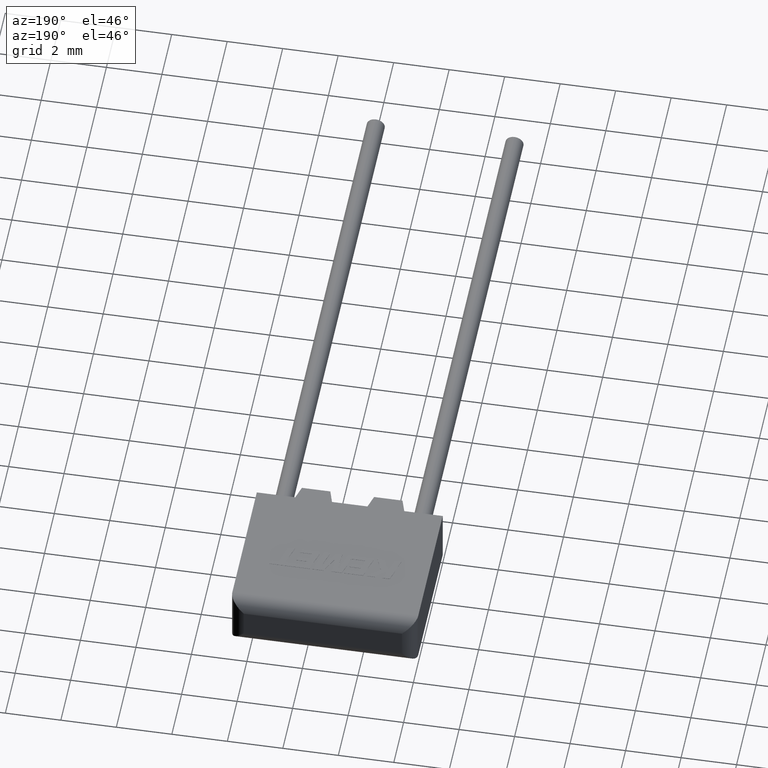
[diagram: clean part render]
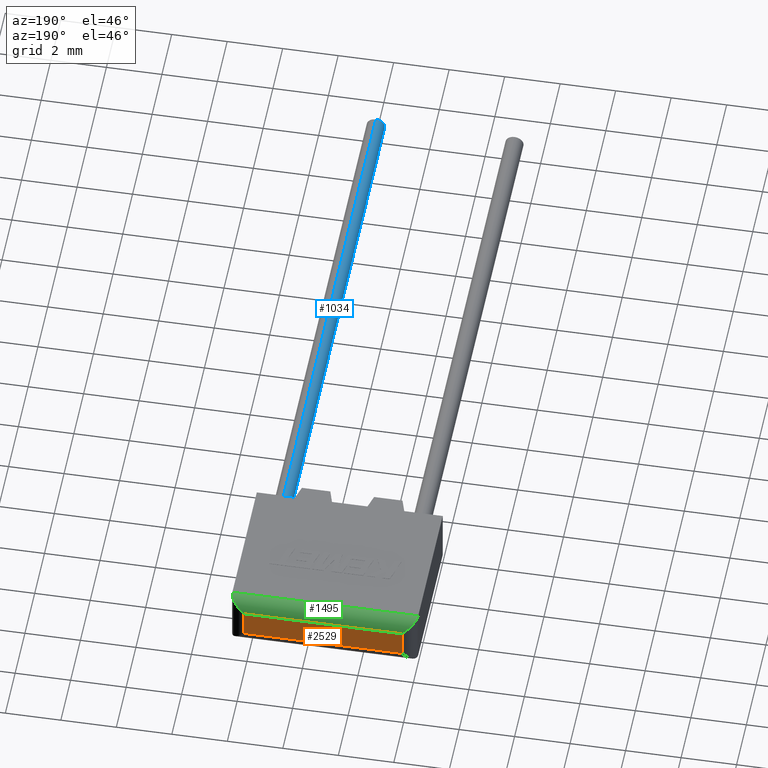
[diagram: same view with three faces highlighted in distinct colors, each labeled with its STEP entity id]
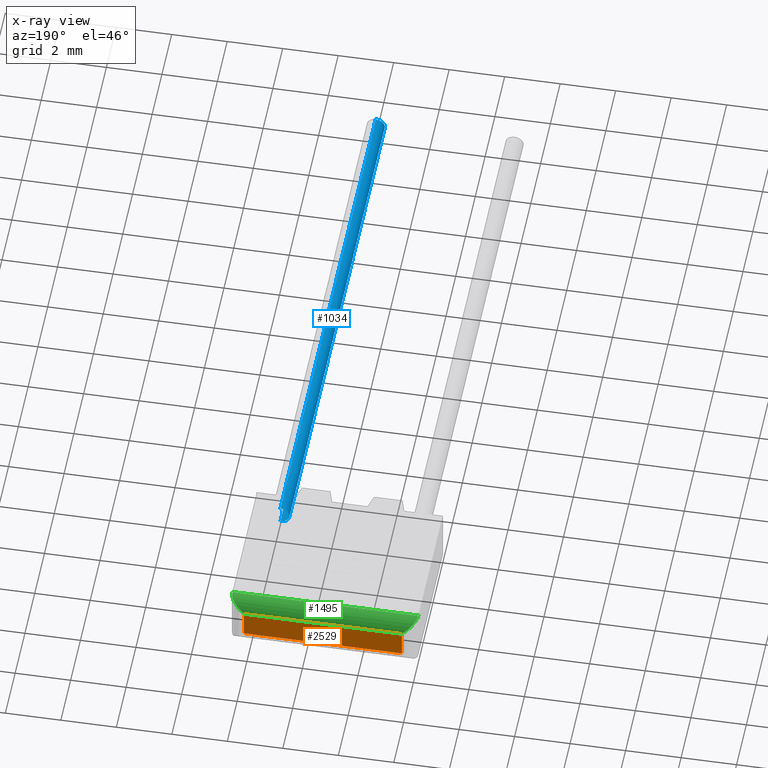
[diagram: x-ray of the same camera — body ghosted, the three highlighted faces saturated]
A machine part, auxiliary view with three faces highlighted in distinct colors.
The next image is the same camera in x-ray (body ghosted, the three faces saturated) — at least one of them is partly hidden behind the body in this view.
Their STEP definitions:

[orange] entity #2529 — the highlighted planar face has unit normal (0, -1, 0).
#49 = DIRECTION ( 'NONE',  ( 1.000000000000000000, -0.0000000000000000000, -0.0000000000000000000 ) ) ;
#65 = FACE_OUTER_BOUND ( 'NONE', #1233, .T. ) ;
#75 = CARTESIAN_POINT ( 'NONE',  ( 0.5000000000000000000, 5.500000000000000000, 0.5000000000000000000 ) ) ;
#97 = CARTESIAN_POINT ( 'NONE',  ( 0.0000000000000000000, 5.500000000000000000, 0.5000000000000000000 ) ) ;
#414 = DIRECTION ( 'NONE',  ( -0.0000000000000000000, -0.0000000000000000000, 1.000000000000000000 ) ) ;
#482 = AXIS2_PLACEMENT_3D ( 'NONE', #2694, #984, #1253 ) ;
#503 = EDGE_CURVE ( 'NONE', #1848, #1045, #1917, .T. ) ;
#779 = LINE ( 'NONE', #940, #2857 ) ;
#939 = CARTESIAN_POINT ( 'NONE',  ( 0.5000000000000000000, 5.500000000000000000, 2.000000000000000000 ) ) ;
#940 = CARTESIAN_POINT ( 'NONE',  ( 6.200000000000001100, 5.500000000000000000, 2.000000000000000000 ) ) ;
#984 = DIRECTION ( 'NONE',  ( 0.0000000000000000000, -1.000000000000000000, 0.0000000000000000000 ) ) ;
#1045 = VERTEX_POINT ( 'NONE', #2597 ) ;
#1048 = EDGE_CURVE ( 'NONE', #1633, #1848, #2551, .T. ) ;
#1075 = ORIENTED_EDGE ( 'NONE', *, *, #1976, .T. ) ;
#1105 = VERTEX_POINT ( 'NONE', #2841 ) ;
#1233 = EDGE_LOOP ( 'NONE', ( #2333, #1075, #2472, #2643 ) ) ;
#1253 = DIRECTION ( 'NONE',  ( 0.0000000000000000000, -0.0000000000000000000, -1.000000000000000000 ) ) ;
#1633 = VERTEX_POINT ( 'NONE', #2641 ) ;
#1835 = VECTOR ( 'NONE', #414, 1000.000000000000000 ) ;
#1848 = VERTEX_POINT ( 'NONE', #75 ) ;
#1855 = VECTOR ( 'NONE', #49, 1000.000000000000000 ) ;
#1917 = LINE ( 'NONE', #939, #1835 ) ;
#1976 = EDGE_CURVE ( 'NONE', #1105, #1633, #779, .T. ) ;
#1981 = PLANE ( 'NONE',  #482 ) ;
#2332 = CARTESIAN_POINT ( 'NONE',  ( 0.0000000000000000000, 5.500000000000000000, 1.500000000000000000 ) ) ;
#2333 = ORIENTED_EDGE ( 'NONE', *, *, #2884, .T. ) ;
#2367 = VECTOR ( 'NONE', #2380, 1000.000000000000000 ) ;
#2380 = DIRECTION ( 'NONE',  ( -1.000000000000000000, 0.0000000000000000000, 0.0000000000000000000 ) ) ;
#2472 = ORIENTED_EDGE ( 'NONE', *, *, #1048, .T. ) ;
#2502 = LINE ( 'NONE', #2332, #1855 ) ;
#2529 = ADVANCED_FACE ( 'NONE', ( #65 ), #1981, .F. ) ;
#2551 = LINE ( 'NONE', #97, #2367 ) ;
#2597 = CARTESIAN_POINT ( 'NONE',  ( 0.5000000000000000000, 5.500000000000000000, 1.500000000000000000 ) ) ;
#2641 = CARTESIAN_POINT ( 'NONE',  ( 6.200000000000001100, 5.500000000000000000, 0.5000000000000000000 ) ) ;
#2643 = ORIENTED_EDGE ( 'NONE', *, *, #503, .T. ) ;
#2694 = CARTESIAN_POINT ( 'NONE',  ( 0.0000000000000000000, 5.500000000000000000, 2.000000000000000000 ) ) ;
#2841 = CARTESIAN_POINT ( 'NONE',  ( 6.200000000000001100, 5.500000000000000000, 1.500000000000000000 ) ) ;
#2857 = VECTOR ( 'NONE', #2954, 1000.000000000000000 ) ;
#2884 = EDGE_CURVE ( 'NONE', #1045, #1105, #2502, .T. ) ;
#2954 = DIRECTION ( 'NONE',  ( 0.0000000000000000000, 0.0000000000000000000, -1.000000000000000000 ) ) ;

[blue] entity #1034 — the highlighted cylindrical surface (edge-blend (fillet) strip) has radius 0.325 mm, axis along (-0, 1, -0).
#25 = VECTOR ( 'NONE', #1696, 1000.000000000000000 ) ;
#50 = AXIS2_PLACEMENT_3D ( 'NONE', #3194, #2213, #2176 ) ;
#74 = AXIS2_PLACEMENT_3D ( 'NONE', #2608, #882, #1909 ) ;
#308 = CIRCLE ( 'NONE', #50, 0.3250000000000000100 ) ;
#455 = VERTEX_POINT ( 'NONE', #2188 ) ;
#539 = CARTESIAN_POINT ( 'NONE',  ( 5.850000000000000500, 0.0000000000000000000, 0.6750000000000002700 ) ) ;
#581 = CARTESIAN_POINT ( 'NONE',  ( 5.850000000000000500, 0.0000000000000000000, 1.325000000000000200 ) ) ;
#672 = LINE ( 'NONE', #3024, #1114 ) ;
#873 = DIRECTION ( 'NONE',  ( 0.0000000000000000000, 0.0000000000000000000, -1.000000000000000000 ) ) ;
#882 = DIRECTION ( 'NONE',  ( -0.0000000000000000000, 1.000000000000000000, -0.0000000000000000000 ) ) ;
#989 = LINE ( 'NONE', #2921, #25 ) ;
#1034 = ADVANCED_FACE ( 'NONE', ( #1125 ), #1448, .T. ) ;
#1081 = ORIENTED_EDGE ( 'NONE', *, *, #1995, .F. ) ;
#1114 = VECTOR ( 'NONE', #2294, 1000.000000000000000 ) ;
#1125 = FACE_OUTER_BOUND ( 'NONE', #3121, .T. ) ;
#1403 = VERTEX_POINT ( 'NONE', #2116 ) ;
#1448 = CYLINDRICAL_SURFACE ( 'NONE', #74, 0.3250000000000000100 ) ;
#1587 = ORIENTED_EDGE ( 'NONE', *, *, #1673, .F. ) ;
#1628 = EDGE_CURVE ( 'NONE', #455, #1403, #1717, .T. ) ;
#1673 = EDGE_CURVE ( 'NONE', #455, #3039, #672, .T. ) ;
#1696 = DIRECTION ( 'NONE',  ( -0.0000000000000000000, 1.000000000000000000, -0.0000000000000000000 ) ) ;
#1717 = CIRCLE ( 'NONE', #1923, 0.3250000000000000100 ) ;
#1901 = DIRECTION ( 'NONE',  ( -0.0000000000000000000, 1.000000000000000000, -0.0000000000000000000 ) ) ;
#1909 = DIRECTION ( 'NONE',  ( 0.0000000000000000000, 0.0000000000000000000, 1.000000000000000000 ) ) ;
#1923 = AXIS2_PLACEMENT_3D ( 'NONE', #2124, #1901, #873 ) ;
#1995 = EDGE_CURVE ( 'NONE', #3039, #2373, #308, .T. ) ;
#2116 = CARTESIAN_POINT ( 'NONE',  ( 5.850000000000000500, -19.50000000000000000, 1.325000000000000200 ) ) ;
#2124 = CARTESIAN_POINT ( 'NONE',  ( 5.850000000000000500, -19.50000000000000000, 1.000000000000000200 ) ) ;
#2128 = EDGE_CURVE ( 'NONE', #1403, #2373, #989, .T. ) ;
#2176 = DIRECTION ( 'NONE',  ( 0.0000000000000000000, 0.0000000000000000000, -1.000000000000000000 ) ) ;
#2188 = CARTESIAN_POINT ( 'NONE',  ( 5.850000000000000500, -19.50000000000000000, 0.6750000000000002700 ) ) ;
#2213 = DIRECTION ( 'NONE',  ( -0.0000000000000000000, 1.000000000000000000, -0.0000000000000000000 ) ) ;
#2294 = DIRECTION ( 'NONE',  ( -0.0000000000000000000, 1.000000000000000000, -0.0000000000000000000 ) ) ;
#2348 = ORIENTED_EDGE ( 'NONE', *, *, #2128, .T. ) ;
#2373 = VERTEX_POINT ( 'NONE', #581 ) ;
#2608 = CARTESIAN_POINT ( 'NONE',  ( 5.850000000000000500, -19.50000000000000000, 1.000000000000000200 ) ) ;
#2921 = CARTESIAN_POINT ( 'NONE',  ( 5.850000000000000500, -19.50000000000000000, 1.325000000000000200 ) ) ;
#3024 = CARTESIAN_POINT ( 'NONE',  ( 5.850000000000000500, -19.50000000000000000, 0.6750000000000002700 ) ) ;
#3039 = VERTEX_POINT ( 'NONE', #539 ) ;
#3121 = EDGE_LOOP ( 'NONE', ( #1587, #3144, #2348, #1081 ) ) ;
#3144 = ORIENTED_EDGE ( 'NONE', *, *, #1628, .T. ) ;
#3194 = CARTESIAN_POINT ( 'NONE',  ( 5.850000000000000500, 0.0000000000000000000, 1.000000000000000200 ) ) ;

[green] entity #1495 — the highlighted cylindrical surface (edge-blend (fillet) strip) has radius 0.5 mm, axis along (-1, 0, 0).
#49 = DIRECTION ( 'NONE',  ( 1.000000000000000000, -0.0000000000000000000, -0.0000000000000000000 ) ) ;
#171 = CARTESIAN_POINT ( 'NONE',  ( 0.2071067811865475200, 5.499999999999998200, 1.792893218813452300 ) ) ;
#200 = CARTESIAN_POINT ( 'NONE',  ( 6.492893218813453200, 5.499999999999999100, 1.792893218813452500 ) ) ;
#232 = FACE_OUTER_BOUND ( 'NONE', #1622, .T. ) ;
#250 = CARTESIAN_POINT ( 'NONE',  ( 0.0000000000000000000, 4.999999999999999100, 2.000000000000000000 ) ) ;
#256 = DIRECTION ( 'NONE',  ( -1.000000000000000000, 0.0000000000000000000, 0.0000000000000000000 ) ) ;
#828 = ORIENTED_EDGE ( 'NONE', *, *, #2884, .F. ) ;
#925 = CARTESIAN_POINT ( 'NONE',  ( 6.700000000000000200, 4.999999999999999100, 2.000000000000000000 ) ) ;
#1045 = VERTEX_POINT ( 'NONE', #2597 ) ;
#1102 = ORIENTED_EDGE ( 'NONE', *, *, #2565, .F. ) ;
#1105 = VERTEX_POINT ( 'NONE', #2841 ) ;
#1390 = VERTEX_POINT ( 'NONE', #1837 ) ;
#1402 = CYLINDRICAL_SURFACE ( 'NONE', #3145, 0.5000000000000000000 ) ;
#1464 = EDGE_CURVE ( 'NONE', #1045, #1487, #2705, .T. ) ;
#1480 = CARTESIAN_POINT ( 'NONE',  ( 0.0000000000000000000, 4.999999999999999100, 2.000000000000000000 ) ) ;
#1487 = VERTEX_POINT ( 'NONE', #250 ) ;
#1495 = ADVANCED_FACE ( 'NONE', ( #232 ), #1402, .T. ) ;
#1499 = DIRECTION ( 'NONE',  ( -1.000000000000000000, 0.0000000000000000000, 0.0000000000000000000 ) ) ;
#1501 = DIRECTION ( 'NONE',  ( 0.0000000000000000000, 0.0000000000000000000, 1.000000000000000000 ) ) ;
#1622 = EDGE_LOOP ( 'NONE', ( #2752, #1102, #2816, #828 ) ) ;
#1686 = CARTESIAN_POINT ( 'NONE',  ( 6.700000000000000200, 5.292893218813451200, 2.000000000000000000 ) ) ;
#1723 = CARTESIAN_POINT ( 'NONE',  ( 6.200000000000001100, 5.500000000000000000, 1.500000000000000000 ) ) ;
#1837 = CARTESIAN_POINT ( 'NONE',  ( 6.700000000000000200, 4.999999999999999100, 2.000000000000000000 ) ) ;
#1855 = VECTOR ( 'NONE', #49, 1000.000000000000000 ) ;
#1990 = EDGE_CURVE ( 'NONE', #1105, #1390, #2498, .T. ) ;
#2138 = CARTESIAN_POINT ( 'NONE',  ( 0.5000000000000000000, 5.500000000000000000, 1.500000000000000000 ) ) ;
#2332 = CARTESIAN_POINT ( 'NONE',  ( 0.0000000000000000000, 5.500000000000000000, 1.500000000000000000 ) ) ;
#2400 = CARTESIAN_POINT ( 'NONE',  ( 1.442892915397364600E-016, 5.292893218813451200, 1.999999999999999600 ) ) ;
#2498 =( BOUNDED_CURVE ( )  B_SPLINE_CURVE ( 3, ( #1723, #200, #1686, #925 ),
 .UNSPECIFIED., .F., .F. ) 
 B_SPLINE_CURVE_WITH_KNOTS ( ( 4, 4 ),
 ( 1.570796326794896600, 3.141592653589793100 ),
 .UNSPECIFIED. ) 
 CURVE ( )  GEOMETRIC_REPRESENTATION_ITEM ( )  RATIONAL_B_SPLINE_CURVE ( ( 1.000000000000000000, 0.8047378541243649400, 0.8047378541243649400, 1.000000000000000000 ) ) 
 REPRESENTATION_ITEM ( '' )  );
#2502 = LINE ( 'NONE', #2332, #1855 ) ;
#2535 = VECTOR ( 'NONE', #1499, 1000.000000000000000 ) ;
#2565 = EDGE_CURVE ( 'NONE', #1390, #1487, #2970, .T. ) ;
#2597 = CARTESIAN_POINT ( 'NONE',  ( 0.5000000000000000000, 5.500000000000000000, 1.500000000000000000 ) ) ;
#2644 = CARTESIAN_POINT ( 'NONE',  ( 0.0000000000000000000, 4.999999999999999100, 2.000000000000000000 ) ) ;
#2705 =( BOUNDED_CURVE ( )  B_SPLINE_CURVE ( 3, ( #2138, #171, #2400, #2644 ),
 .UNSPECIFIED., .F., .F. ) 
 B_SPLINE_CURVE_WITH_KNOTS ( ( 4, 4 ),
 ( 1.570796326794896800, 3.141592653589793100 ),
 .UNSPECIFIED. ) 
 CURVE ( )  GEOMETRIC_REPRESENTATION_ITEM ( )  RATIONAL_B_SPLINE_CURVE ( ( 1.000000000000000000, 0.8047378541243650500, 0.8047378541243650500, 1.000000000000000000 ) ) 
 REPRESENTATION_ITEM ( '' )  );
#2752 = ORIENTED_EDGE ( 'NONE', *, *, #1464, .T. ) ;
#2816 = ORIENTED_EDGE ( 'NONE', *, *, #1990, .F. ) ;
#2841 = CARTESIAN_POINT ( 'NONE',  ( 6.200000000000001100, 5.500000000000000000, 1.500000000000000000 ) ) ;
#2884 = EDGE_CURVE ( 'NONE', #1045, #1105, #2502, .T. ) ;
#2970 = LINE ( 'NONE', #1480, #2535 ) ;
#2980 = CARTESIAN_POINT ( 'NONE',  ( 0.0000000000000000000, 4.999999999999999100, 1.500000000000000000 ) ) ;
#3145 = AXIS2_PLACEMENT_3D ( 'NONE', #2980, #256, #1501 ) ;